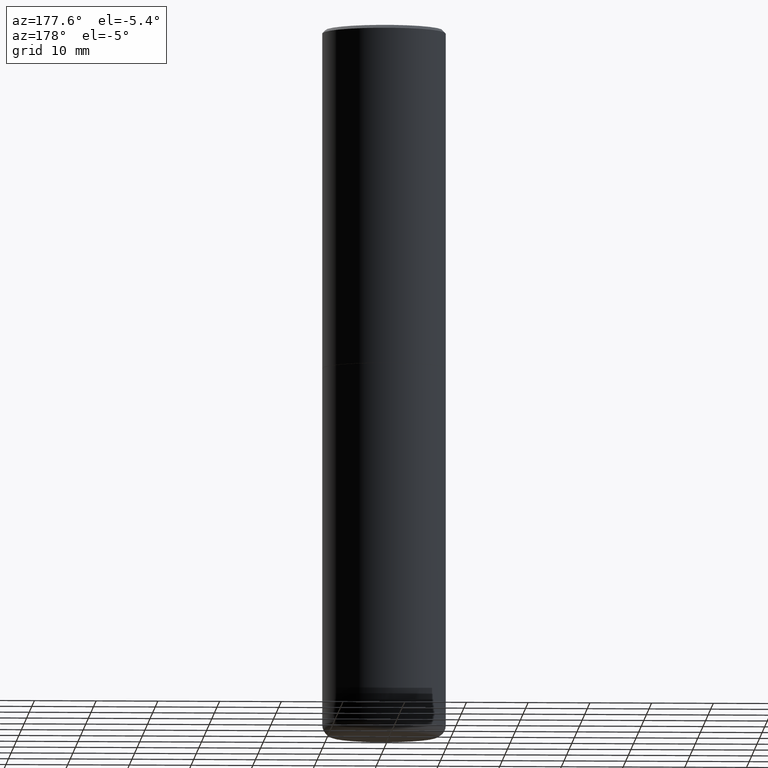
[diagram: clean part render]
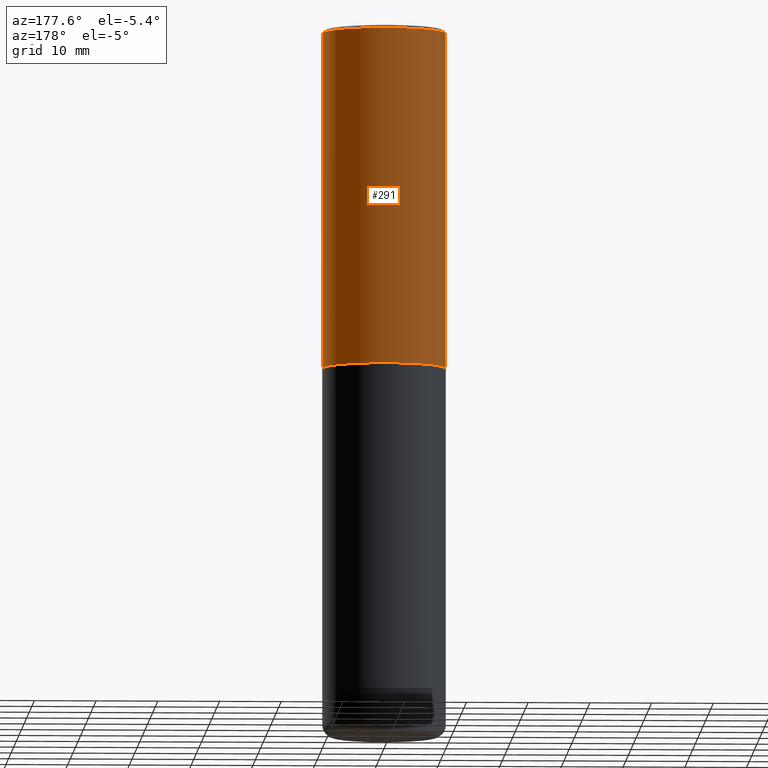
[diagram: same view with one face highlighted and labeled with its STEP entity id]
A machine part, auxiliary view. The second image highlights one B-rep face of the part: STEP entity #291.
In plain terms, the highlighted cylindrical surface (partial cylindrical patch) has radius 10 mm, axis along (-0, 0, 1).
Its self-contained STEP definition (entity closure, byte-faithful):
#20 = CIRCLE ( 'NONE', #93, 0.3937000000000000499 ) ;
#28 = DIRECTION ( 'NONE',  ( 1.000000000000000000, -6.982962677686265922E-15, 0.000000000000000000 ) ) ;
#30 = CARTESIAN_POINT ( 'NONE',  ( -0.3937000000000000499, 2.679362779428219918E-15, -0.02000000000000008715 ) ) ;
#31 = AXIS2_PLACEMENT_3D ( 'NONE', #382, #277, #346 ) ;
#40 = ORIENTED_EDGE ( 'NONE', *, *, #381, .T. ) ;
#73 = ORIENTED_EDGE ( 'NONE', *, *, #331, .T. ) ;
#84 = VERTEX_POINT ( 'NONE', #30 ) ;
#87 = ORIENTED_EDGE ( 'NONE', *, *, #321, .F. ) ;
#93 = AXIS2_PLACEMENT_3D ( 'NONE', #225, #227, #28 ) ;
#100 = EDGE_CURVE ( 'NONE', #368, #84, #20, .T. ) ;
#127 = CYLINDRICAL_SURFACE ( 'NONE', #31, 0.3937000000000001609 ) ;
#129 = VECTOR ( 'NONE', #255, 39.37007874015748143 ) ;
#150 = VECTOR ( 'NONE', #211, 39.37007874015748143 ) ;
#154 = LINE ( 'NONE', #318, #150 ) ;
#167 = ORIENTED_EDGE ( 'NONE', *, *, #100, .F. ) ;
#181 = VERTEX_POINT ( 'NONE', #387 ) ;
#211 = DIRECTION ( 'NONE',  ( -2.445468806185136877E-29, 3.491481338843145188E-15, 1.000000000000000000 ) ) ;
#225 = CARTESIAN_POINT ( 'NONE',  ( 4.890937612370294178E-31, -6.982962677686321191E-17, -0.02000000000000008715 ) ) ;
#227 = DIRECTION ( 'NONE',  ( -2.445468806185136597E-29, 3.491481338843145583E-15, 1.000000000000000000 ) ) ;
#244 = DIRECTION ( 'NONE',  ( -2.445468806185136597E-29, 3.491481338843145583E-15, 1.000000000000000000 ) ) ;
#252 = CARTESIAN_POINT ( 'NONE',  ( 0.3937000000000000499, -2.770807688499515734E-15, -0.02000000000000008715 ) ) ;
#255 = DIRECTION ( 'NONE',  ( -2.445468806185136877E-29, 3.491481338843145188E-15, 1.000000000000000000 ) ) ;
#268 = CIRCLE ( 'NONE', #392, 0.3937000000000002720 ) ;
#277 = DIRECTION ( 'NONE',  ( -2.445468806185136597E-29, 3.491481338843145583E-15, 1.000000000000000000 ) ) ;
#291 = ADVANCED_FACE ( 'NONE', ( #310 ), #127, .T. ) ;
#307 = CARTESIAN_POINT ( 'NONE',  ( 5.292972684107107621E-29, -7.556962209792102838E-15, -2.164399999999999658 ) ) ;
#310 = FACE_OUTER_BOUND ( 'NONE', #404, .T. ) ;
#318 = CARTESIAN_POINT ( 'NONE',  ( 0.3937000000000001609, -2.749192406205084400E-15, 1.919750796630860732E-29 ) ) ;
#321 = EDGE_CURVE ( 'NONE', #181, #368, #154, .T. ) ;
#331 = EDGE_CURVE ( 'NONE', #380, #84, #384, .T. ) ;
#339 = CARTESIAN_POINT ( 'NONE',  ( -0.3937000000000001609, 2.797406750687515575E-15, -1.936584745033357296E-29 ) ) ;
#346 = DIRECTION ( 'NONE',  ( 1.000000000000000000, -6.982962677686266711E-15, 4.876176775795935793E-29 ) ) ;
#368 = VERTEX_POINT ( 'NONE', #252 ) ;
#370 = DIRECTION ( 'NONE',  ( 1.000000000000000000, -6.982962677686269077E-15, 0.000000000000000000 ) ) ;
#380 = VERTEX_POINT ( 'NONE', #410 ) ;
#381 = EDGE_CURVE ( 'NONE', #181, #380, #268, .T. ) ;
#382 = CARTESIAN_POINT ( 'NONE',  ( 0.000000000000000000, 0.000000000000000000, 0.000000000000000000 ) ) ;
#384 = LINE ( 'NONE', #339, #129 ) ;
#387 = CARTESIAN_POINT ( 'NONE',  ( 0.3937000000000002720, -1.030615461599718763E-14, -2.164399999999999658 ) ) ;
#392 = AXIS2_PLACEMENT_3D ( 'NONE', #307, #244, #370 ) ;
#404 = EDGE_LOOP ( 'NONE', ( #40, #73, #167, #87 ) ) ;
#410 = CARTESIAN_POINT ( 'NONE',  ( -0.3937000000000003830, -1.015989167596963746E-15, -2.164399999999999658 ) ) ;